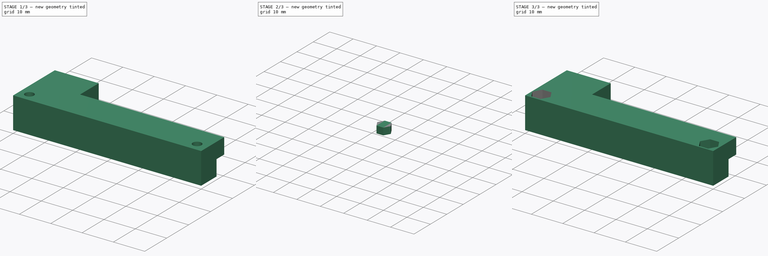
[diagram: build sequence overview — one tinted view per stage of 3, left to right]
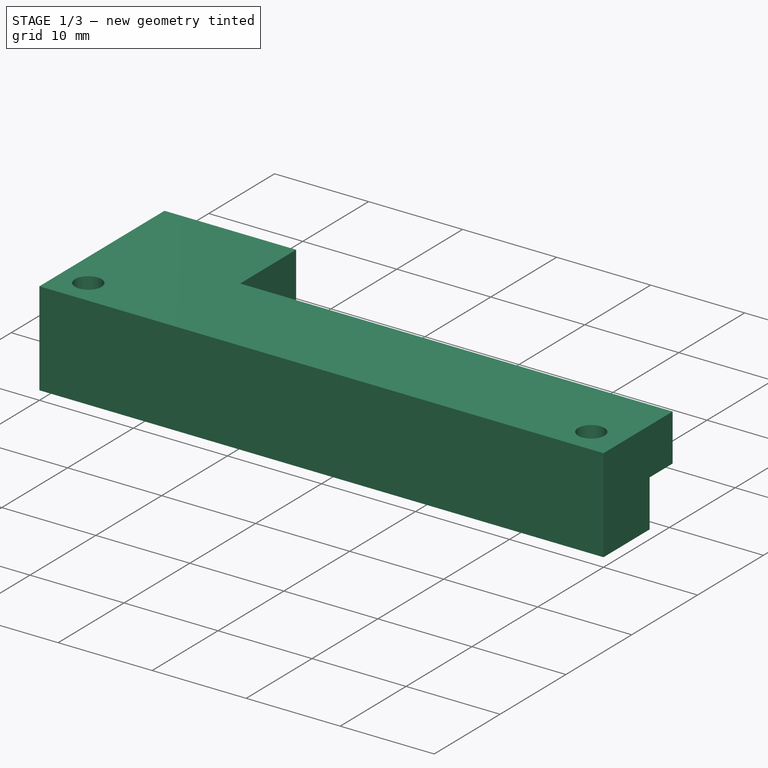
[diagram: stage 1 of 3 — iso view after this stage's code; geometry added in this stage tinted green]
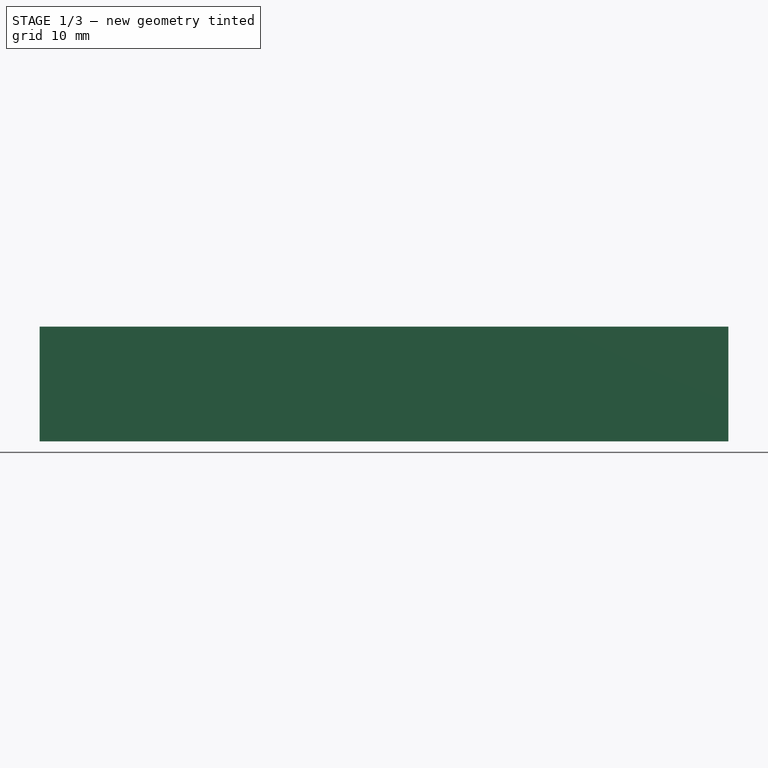
[diagram: stage 1 of 3 — front view after this stage's code; geometry added in this stage tinted green]
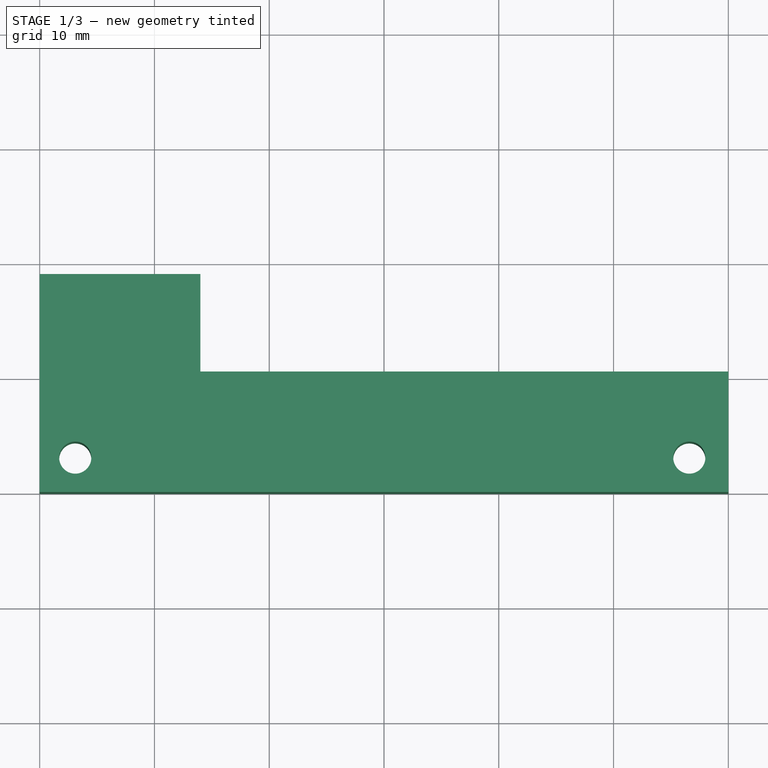
[diagram: stage 1 of 3 — top view after this stage's code; geometry added in this stage tinted green]
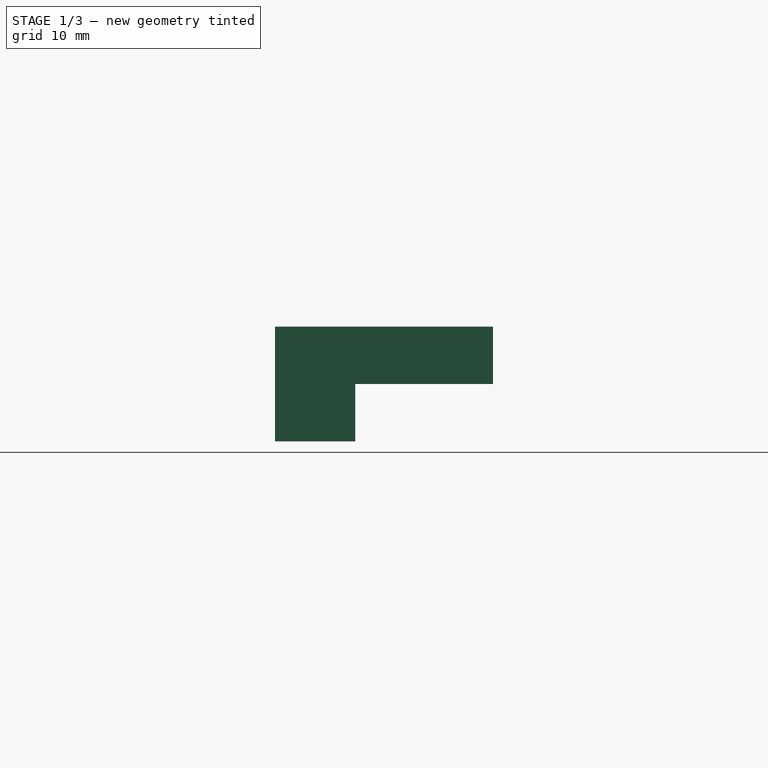
[diagram: stage 1 of 3 — right view after this stage's code; geometry added in this stage tinted green]
FCSTD DOCUMENT  (FreeCAD 0.16R6712 (Git))
Label: cooler-holder
License: All rights reserved
LicenseURL: http://en.wikipedia.org/wiki/All_rights_reserved
objects: Sketcher::SketchObject×4, PartDesign::Pad×4, Part::Part2DObjectPython×2, Part::Extrusion×2, Part::Cut×2
note: 18 computed .brp shape members not serialized (recipe doc carries the construction recipe); baked Part::Feature solids carry a one-line shape summary decoded from their .brp

FEATURE [Sketcher::SketchObject] Sketch
  sketch-geometry (7):
    g0: LineSegment StartX=0 StartY=0 StartZ=0 EndX=60 EndY=0 EndZ=0
    g1: LineSegment StartX=60 StartY=0 StartZ=0 EndX=60 EndY=7 EndZ=0
    g2: LineSegment StartX=60 StartY=7 StartZ=0 EndX=0 EndY=7 EndZ=0
    g3: LineSegment StartX=0 StartY=7 StartZ=0 EndX=0 EndY=0 EndZ=0
    g4: Circle CenterX=3.1 CenterY=3 CenterZ=0 NormalX=0 NormalY=0 NormalZ=1 Radius=1.4
    g5: Circle CenterX=56.6 CenterY=3 CenterZ=0 NormalX=0 NormalY=0 NormalZ=1 Radius=1.4
    g6: LineSegment [constr] StartX=3.1 StartY=3 StartZ=0 EndX=56.6 EndY=3 EndZ=0
  constraints (20):
    c: Coincident(g0,g1)
    c: Coincident(g1,g2)
    c: Coincident(g2,g3)
    c: Coincident(g3,g0)
    c: Horizontal(g0)
    c: Horizontal(g2)
    c: Vertical(g1)
    c: Vertical(g3)
    c: Radius(g4) = 1.4
    c: DistanceX(g4) = 3.1
    c: DistanceY(g4) = 3
    c: DistanceX(g0) = 0
    c: DistanceY(g0) = 0
    c: Radius(g5) = 1.4
    c: DistanceX(g4,g5) = 53.5
    c: Coincident(g6,g4)
    c: Coincident(g6,g5)
    c: Horizontal(g6)
    c: Distance(g1) = 7
    c: Distance(g2) = 60
FEATURE [PartDesign::Pad] Pad
  Length = 10
  Length2 = 100
  Sketch = -> Sketch
  Type = 0
FEATURE [Sketcher::SketchObject] Sketch001
  ExternalGeometry = -> [Pad]
  Placement = pos=(0,7,0) rot=(0,0.707107,0.707107;3.14159rad)
  Support = -> Pad [Face3]
  sketch-geometry (4):
    g0: LineSegment StartX=-60 StartY=10 StartZ=0 EndX=0 EndY=10 EndZ=0
    g1: LineSegment StartX=0 StartY=10 StartZ=0 EndX=0 EndY=5 EndZ=0
    g2: LineSegment StartX=0 StartY=5 StartZ=0 EndX=-60 EndY=5 EndZ=0
    g3: LineSegment StartX=-60 StartY=5 StartZ=0 EndX=-60 EndY=10 EndZ=0
  constraints (11):
    c: Coincident(g0,g1)
    c: Coincident(g1,g2)
    c: Coincident(g2,g3)
    c: Coincident(g3,g0)
    c: Horizontal(g0)
    c: Horizontal(g2)
    c: Vertical(g1)
    c: Vertical(g3)
    c: Coincident(g0,g-3)
    c: PointOnObject(g1,g-2)
    c: Distance(g1) = 5
FEATURE [PartDesign::Pad] Pad001
  Length = 3.5
  Length2 = 100
  Sketch = -> Sketch001
  Type = 0
FEATURE [Sketcher::SketchObject] Sketch002
  ExternalGeometry = -> [Pad001]
  Placement = pos=(0,7,0) rot=(0,0.707107,0.707107;3.14159rad)
  Support = -> Pad001 [Face6]
  sketch-geometry (4):
    g0: LineSegment StartX=0 StartY=10 StartZ=0 EndX=-14 EndY=10 EndZ=0
    g1: LineSegment StartX=-14 StartY=10 StartZ=0 EndX=-14 EndY=5 EndZ=0
    g2: LineSegment StartX=-14 StartY=5 StartZ=0 EndX=0 EndY=5 EndZ=0
    g3: LineSegment StartX=0 StartY=5 StartZ=0 EndX=0 EndY=10 EndZ=0
  constraints (11):
    c: Coincident(g0,g1)
    c: Coincident(g1,g2)
    c: Coincident(g2,g3)
    c: Coincident(g3,g0)
    c: Horizontal(g0)
    c: Horizontal(g2)
    c: Vertical(g1)
    c: Vertical(g3)
    c: Coincident(g0,g-3)
    c: Distance(g1) = 5
    c: Distance(g2) = 14
FEATURE [PartDesign::Pad] Pad002
  Length = 12
  Length2 = 100
  Sketch = -> Sketch002
  Type = 0
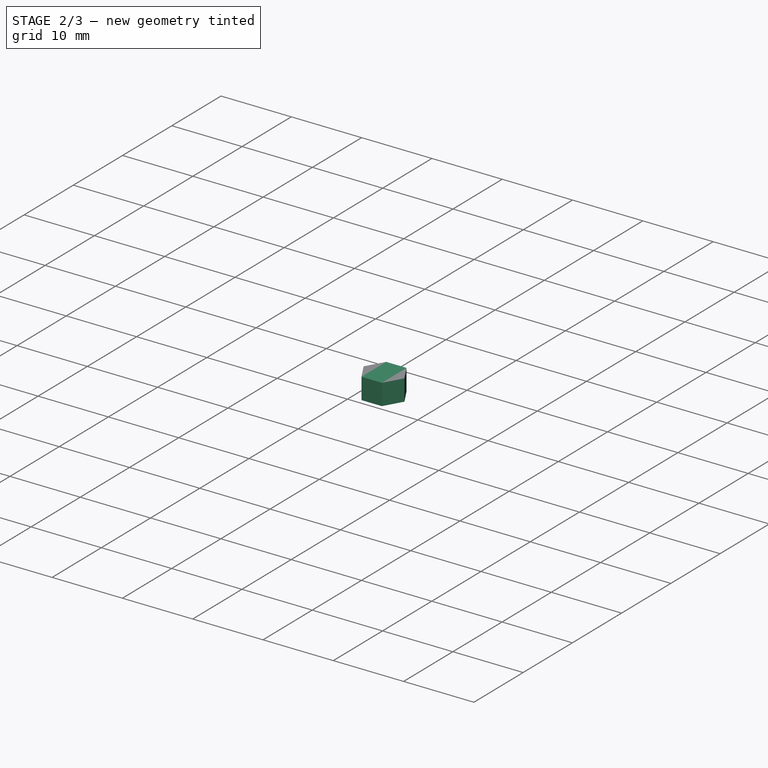
[diagram: stage 2 of 3 — iso view after this stage's code; geometry added in this stage tinted green]
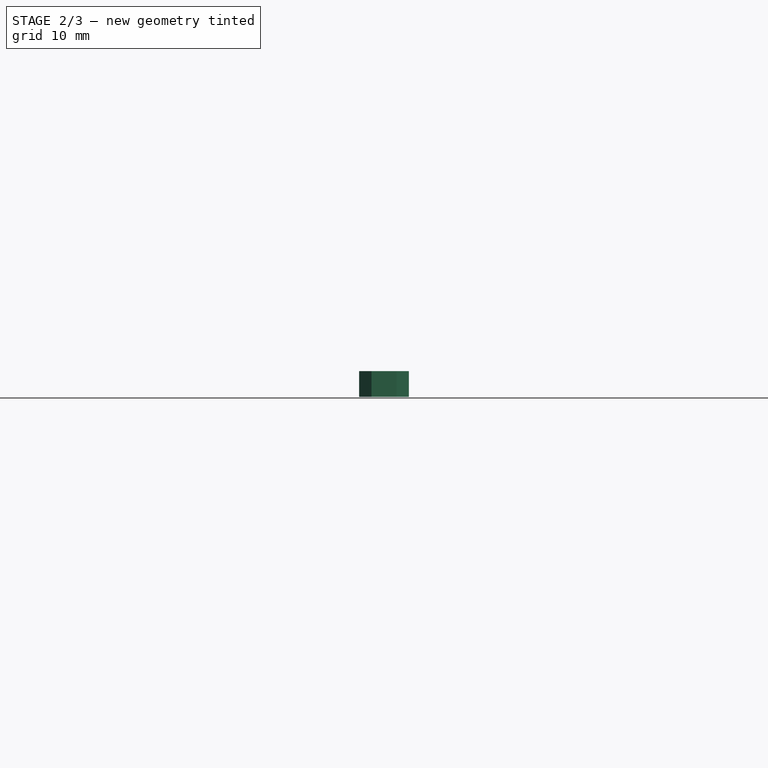
[diagram: stage 2 of 3 — front view after this stage's code; geometry added in this stage tinted green]
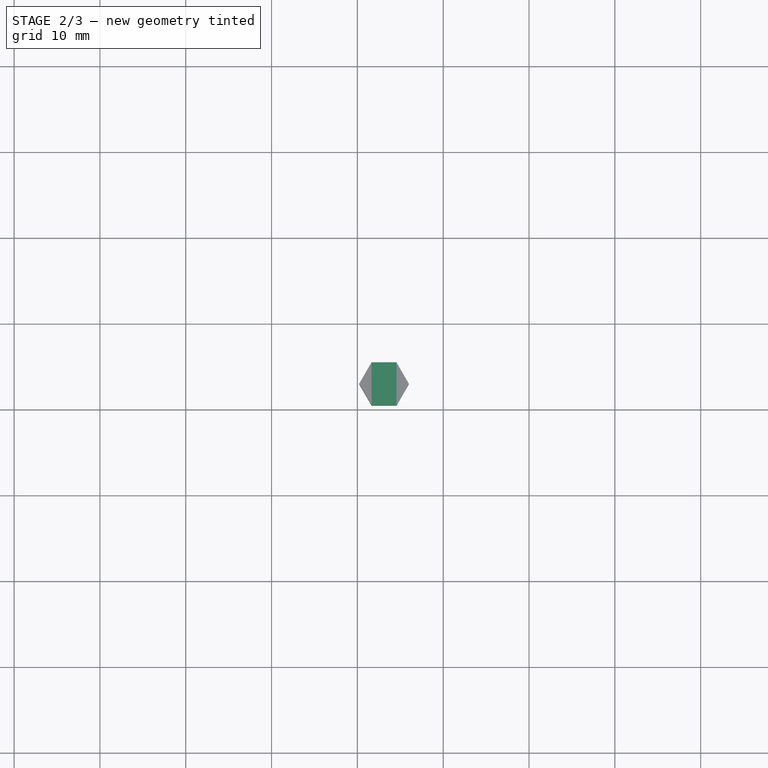
[diagram: stage 2 of 3 — top view after this stage's code; geometry added in this stage tinted green]
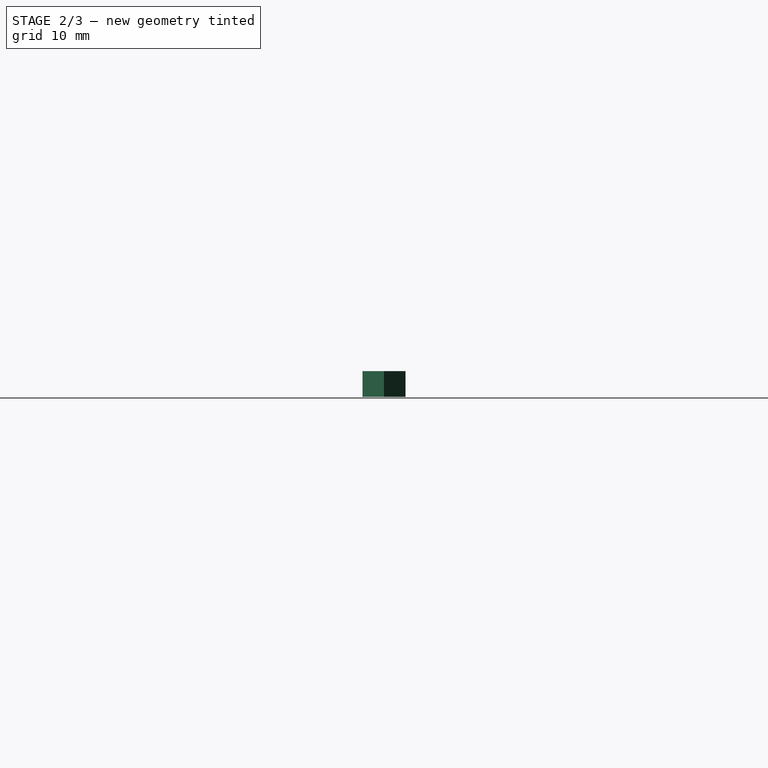
[diagram: stage 2 of 3 — right view after this stage's code; geometry added in this stage tinted green]
FEATURE [Sketcher::SketchObject] Sketch003
  ExternalGeometry = -> [Pad002]
  Placement = pos=(0,0,5) rot=(1,0,0;3.14159rad)
  Support = -> Pad002 [Face18]
  sketch-geometry (1):
    g0: Circle CenterX=7.3 CenterY=-14.5 CenterZ=0 NormalX=0 NormalY=0 NormalZ=1 Radius=1.9
  constraints (3):
    c: DistanceX(g-1,g0) = 7.3
    c: Radius(g0) = 1.9
    c: DistanceY(g0,g-3) = 7.5
FEATURE [PartDesign::Pad] Pad003
  Length = 4
  Length2 = 100
  Sketch = -> Sketch003
  Type = 0
FEATURE [Part::Part2DObjectPython] Polygon  # Draft 2D object (typed FeaturePython)
  ChamferSize = 0
  DrawMode = 0
  FacesNumber = 6
  FilletRadius = 0
  MakeFace = true
  Placement = pos=(3.1,3,10) rot=(1,0,0;3.14159rad)
  Radius = 2.9
  Support = -> Pad003
FEATURE [Part::Extrusion] Extrude  label="M2.5 pocket001"
  Base = -> Polygon
  Dir = (0,0,-3)
  Solid = false
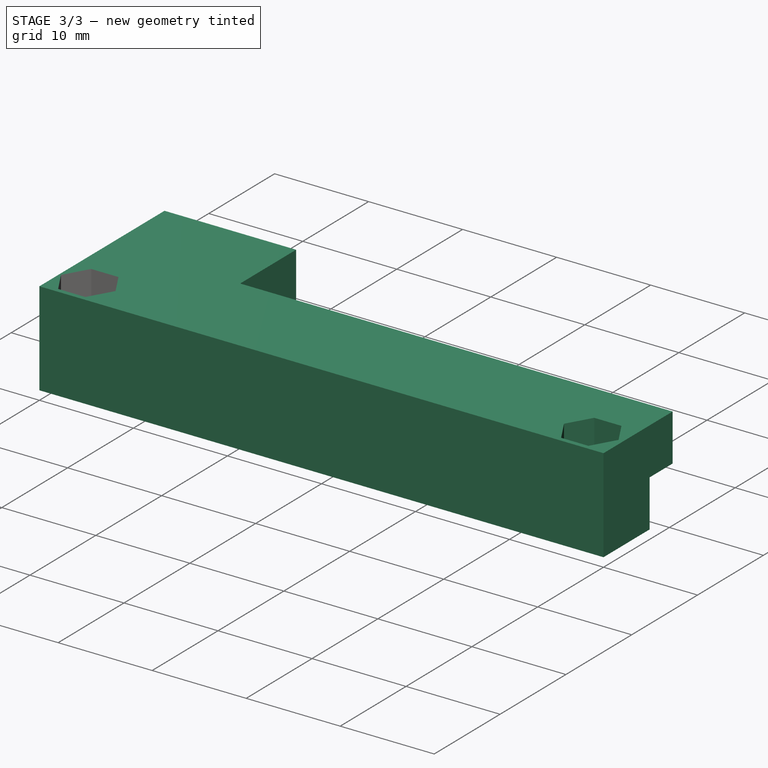
[diagram: stage 3 of 3 — iso view after this stage's code; geometry added in this stage tinted green]
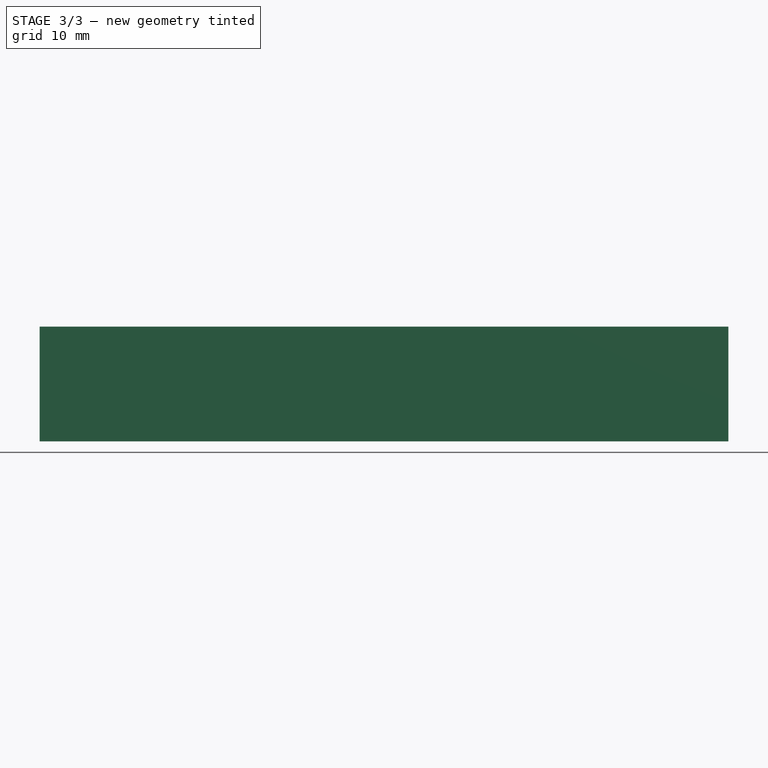
[diagram: stage 3 of 3 — front view after this stage's code; geometry added in this stage tinted green]
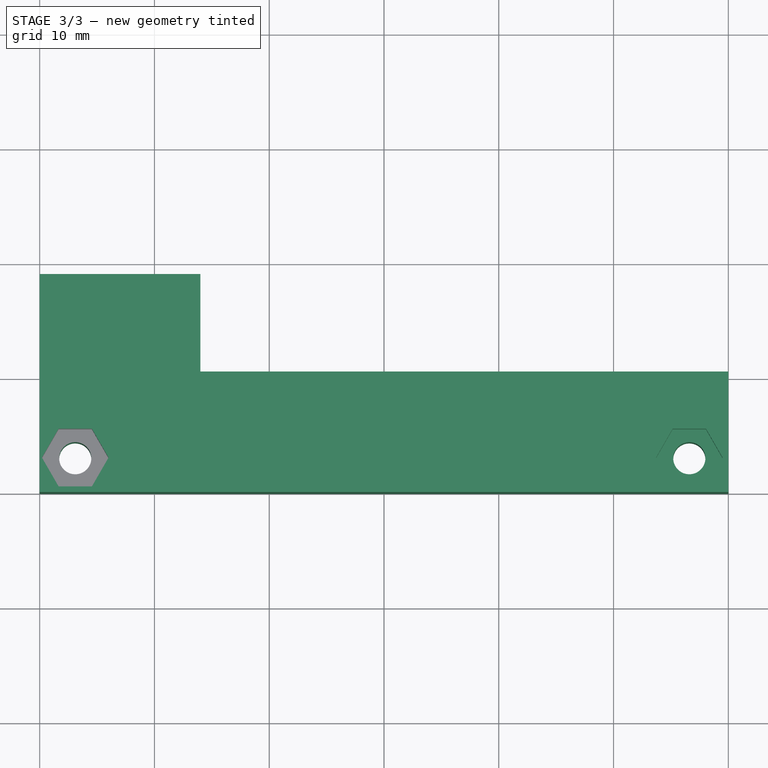
[diagram: stage 3 of 3 — top view after this stage's code; geometry added in this stage tinted green]
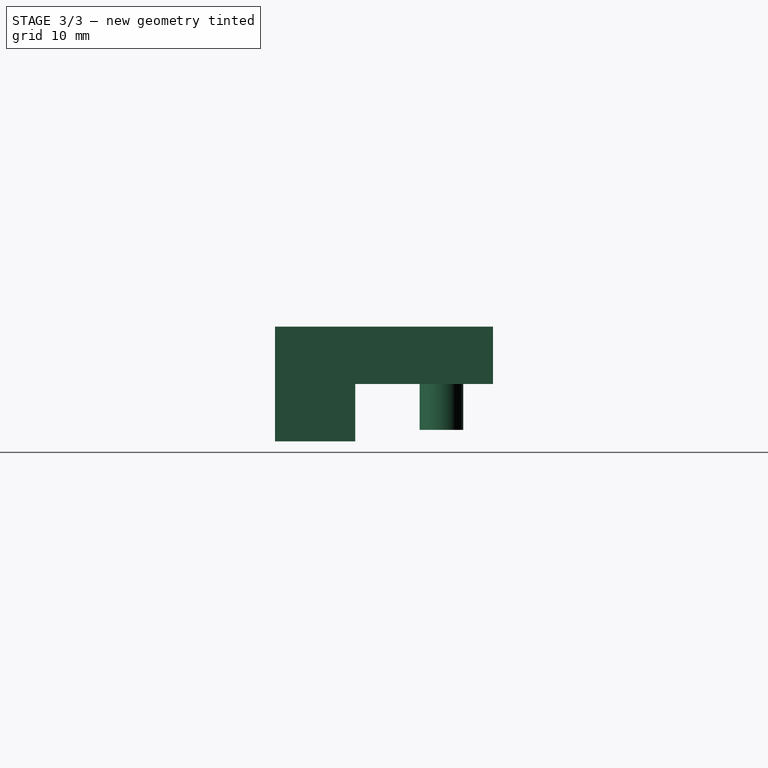
[diagram: stage 3 of 3 — right view after this stage's code; geometry added in this stage tinted green]
FEATURE [Part::Part2DObjectPython] Polygon001  # Draft 2D object (typed FeaturePython)
  ChamferSize = 0
  DrawMode = 0
  FacesNumber = 6
  FilletRadius = 0
  MakeFace = true
  Placement = pos=(56.6,3,10) rot=(1,0,0;3.14159rad)
  Radius = 2.9
  Support = -> Pad003
FEATURE [Part::Extrusion] Extrude001  label="M2.5 pocket"
  Base = -> Polygon001
  Dir = (0,0,-3)
  Solid = false
FEATURE [Part::Cut] Cut
  Base = -> Pad003
  Tool = -> Extrude
FEATURE [Part::Cut] Cut001
  Base = -> Cut
  Tool = -> Extrude001
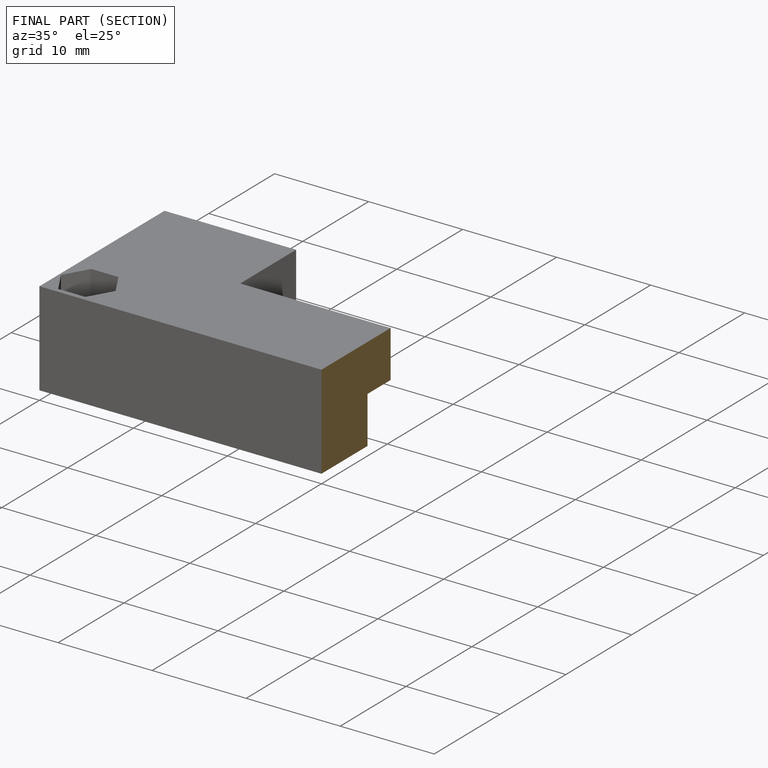
[diagram: finished part — half-section view (interior)]
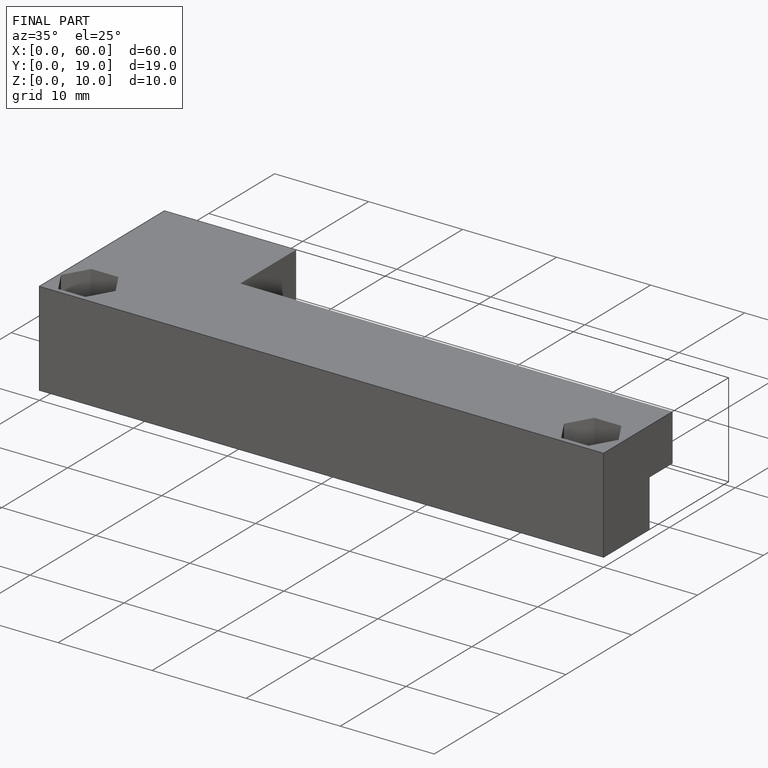
[diagram: finished part — iso view with bounding-box wireframe]
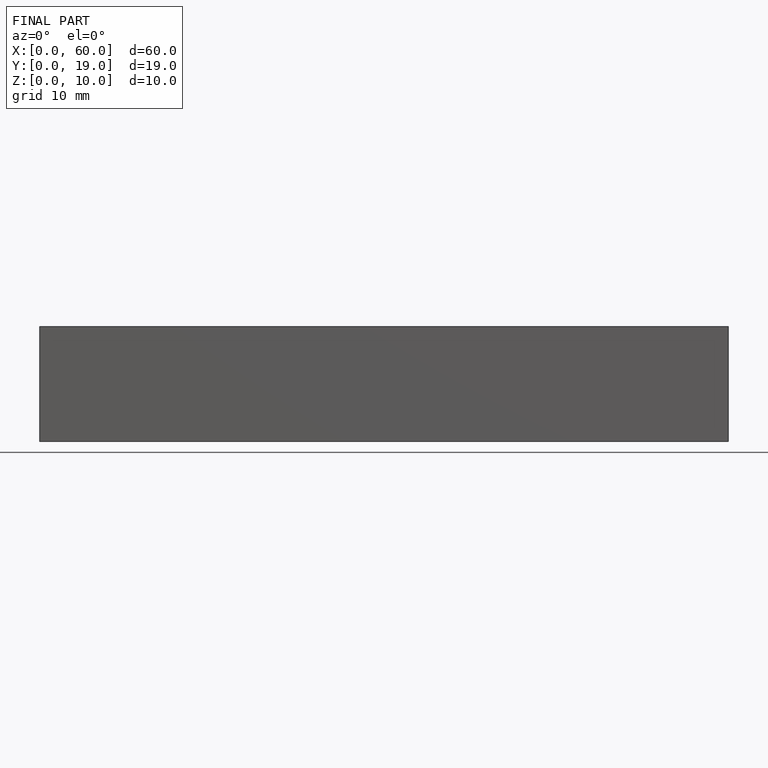
[diagram: finished part — front view with bounding-box wireframe]
